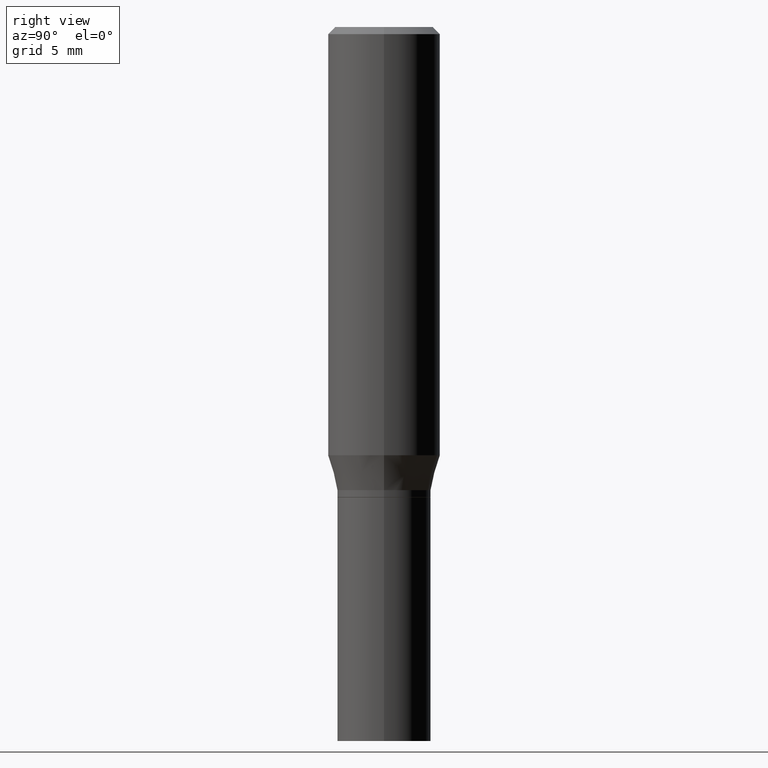
[diagram: clean part render]
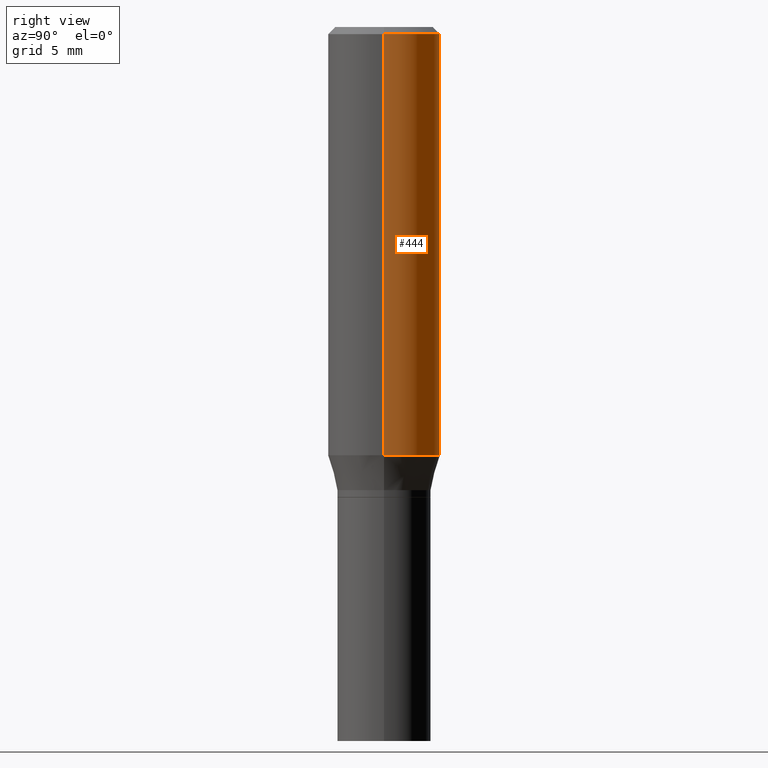
[diagram: same view with one face highlighted and labeled with its STEP entity id]
A machine part, right view. The second image highlights one B-rep face of the part: STEP entity #444.
In plain terms, the highlighted cylindrical surface (partial cylindrical patch) has radius 2.9997 mm, axis along (-0, 0, 1).
Its self-contained STEP definition (entity closure, byte-faithful):
#30 = CARTESIAN_POINT ( 'NONE',  ( -0.1180999999999999966, -2.302013291769461857E-15, -0.8996652016312715050 ) ) ;
#31 = VERTEX_POINT ( 'NONE', #186 ) ;
#33 = CYLINDRICAL_SURFACE ( 'NONE', #50, 0.1180999999999999966 ) ;
#34 = VECTOR ( 'NONE', #234, 39.37007874015748143 ) ;
#50 = AXIS2_PLACEMENT_3D ( 'NONE', #354, #175, #77 ) ;
#56 = CARTESIAN_POINT ( 'NONE',  ( 0.1180999999999999966, -8.246878922347480654E-16, 5.758764772215000440E-30 ) ) ;
#67 = EDGE_CURVE ( 'NONE', #92, #420, #228, .T. ) ;
#77 = DIRECTION ( 'NONE',  ( 1.000000000000000000, -6.982962677686266711E-15, 4.876176775795936353E-29 ) ) ;
#92 = VERTEX_POINT ( 'NONE', #154 ) ;
#133 = CARTESIAN_POINT ( 'NONE',  ( 3.668203209277697643E-31, -5.237222008264707922E-17, -0.01499999999999996995 ) ) ;
#139 = DIRECTION ( 'NONE',  ( -2.445468806185136877E-29, 3.491481338843145188E-15, 1.000000000000000000 ) ) ;
#149 = DIRECTION ( 'NONE',  ( 1.000000000000000000, -6.982962677686269077E-15, 0.000000000000000000 ) ) ;
#154 = CARTESIAN_POINT ( 'NONE',  ( 0.1180999999999999966, -3.965852154936888711E-15, -0.8996652016312715050 ) ) ;
#174 = LINE ( 'NONE', #56, #34 ) ;
#175 = DIRECTION ( 'NONE',  ( -2.445468806185136597E-29, 3.491481338843145583E-15, 1.000000000000000000 ) ) ;
#180 = CIRCLE ( 'NONE', #197, 0.1180999999999999966 ) ;
#186 = CARTESIAN_POINT ( 'NONE',  ( -0.1180999999999999966, -7.576172704597157638E-16, -0.01499999999999996995 ) ) ;
#197 = AXIS2_PLACEMENT_3D ( 'NONE', #133, #267, #417 ) ;
#200 = VERTEX_POINT ( 'NONE', #338 ) ;
#207 = LINE ( 'NONE', #449, #302 ) ;
#216 = CARTESIAN_POINT ( 'NONE',  ( 2.200103186599535672E-29, -3.141164262702140448E-15, -0.8996652016312715050 ) ) ;
#222 = AXIS2_PLACEMENT_3D ( 'NONE', #216, #325, #149 ) ;
#228 = CIRCLE ( 'NONE', #222, 0.1180999999999999966 ) ;
#234 = DIRECTION ( 'NONE',  ( -2.445468806185136877E-29, 3.491481338843145188E-15, 1.000000000000000000 ) ) ;
#243 = ORIENTED_EDGE ( 'NONE', *, *, #371, .F. ) ;
#267 = DIRECTION ( 'NONE',  ( -2.445468806185136597E-29, 3.491481338843145583E-15, 1.000000000000000000 ) ) ;
#274 = ORIENTED_EDGE ( 'NONE', *, *, #360, .F. ) ;
#280 = EDGE_LOOP ( 'NONE', ( #316, #438, #274, #243 ) ) ;
#293 = FACE_OUTER_BOUND ( 'NONE', #280, .T. ) ;
#302 = VECTOR ( 'NONE', #139, 39.37007874015748143 ) ;
#316 = ORIENTED_EDGE ( 'NONE', *, *, #67, .T. ) ;
#325 = DIRECTION ( 'NONE',  ( -2.445468806185136597E-29, 3.491481338843145583E-15, 1.000000000000000000 ) ) ;
#338 = CARTESIAN_POINT ( 'NONE',  ( 0.1180999999999999966, -8.770601123173952432E-16, -0.01499999999999996995 ) ) ;
#354 = CARTESIAN_POINT ( 'NONE',  ( 0.000000000000000000, 0.000000000000000000, 0.000000000000000000 ) ) ;
#360 = EDGE_CURVE ( 'NONE', #200, #31, #180, .T. ) ;
#371 = EDGE_CURVE ( 'NONE', #92, #200, #174, .T. ) ;
#397 = EDGE_CURVE ( 'NONE', #420, #31, #207, .T. ) ;
#417 = DIRECTION ( 'NONE',  ( 1.000000000000000000, -6.982962677686266711E-15, 0.000000000000000000 ) ) ;
#420 = VERTEX_POINT ( 'NONE', #30 ) ;
#438 = ORIENTED_EDGE ( 'NONE', *, *, #397, .T. ) ;
#444 = ADVANCED_FACE ( 'NONE', ( #293 ), #33, .T. ) ;
#449 = CARTESIAN_POINT ( 'NONE',  ( -0.1180999999999999966, 8.391509709326782957E-16, -5.809262341591043784E-30 ) ) ;